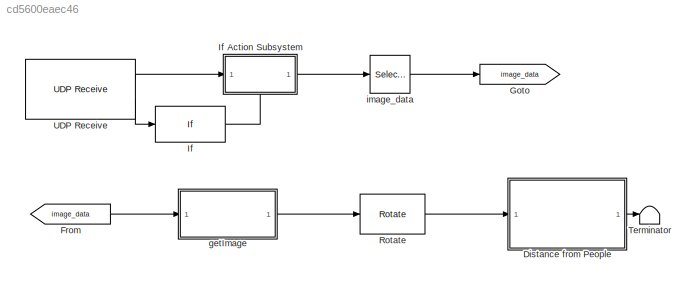
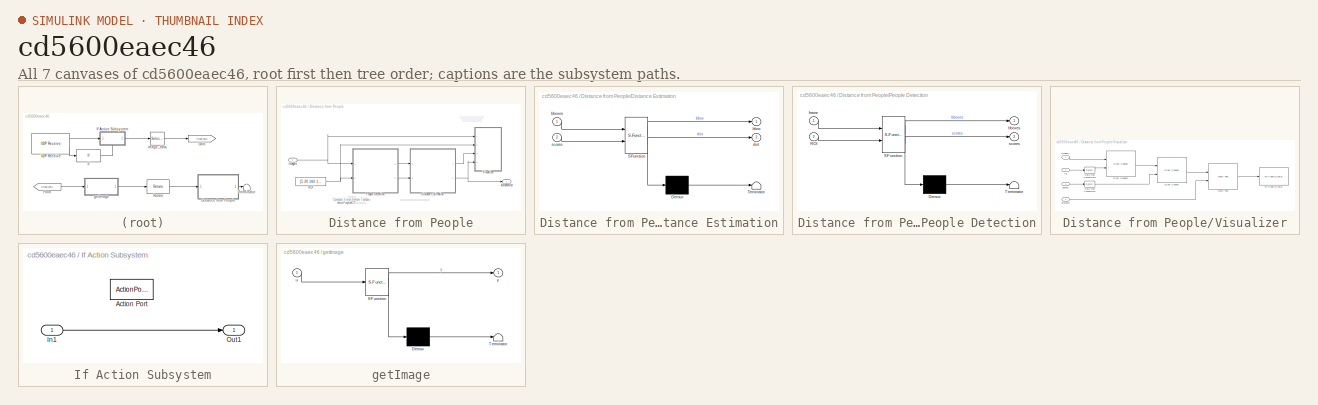
[diagram: thumbnail index - all 7 canvases of the model, root first then tree order]
MODEL slx_cd5600eaec46
KIND model
CONFIG AbsTol = auto
CONFIG FixedStep = 0.01
CONFIG InitFcn = data_len = 63504+16;
CONFIG MaxStep = auto
CONFIG MinStep = auto
CONFIG RelTol = 1e-3
CONFIG SampleTimeConstraint = Unconstrained
CONFIG Solver = FixedStepAuto
CONFIG SolverMode = Auto
CONFIG SolverName = FixedStepAuto
CONFIG StartTime = 0.0
CONFIG StopTime = inf
BLOCK [SubSystem] Distance from People
  Ports = [1, 1]
  RequestExecContextInheritance = off
  Variant = off
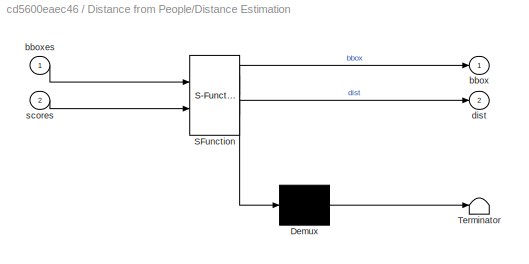
BLOCK [SubSystem] Distance from People/Distance Estimation
  ErrorFcn = Stateflow.Translate.translate
  PermitHierarchicalResolution = ExplicitOnly
  Ports = [2, 2]
  RequestExecContextInheritance = off
  SFBlockType = MATLAB Function
  TreatAsAtomicUnit = on
  Variant = off
BLOCK [Demux] Distance from People/Distance Estimation/ Demux 
  Outputs = 1
  Ports = [1, 1]
BLOCK [S-Function] Distance from People/Distance Estimation/ SFunction 
  EnableBusSupport = on
  FunctionName = sf_sfun
  PortCounts = [2 3]
  Ports = [2, 3]
  SFunctionDeploymentMode = off
  Tag = Stateflow S-Function detectPerson 5
BLOCK [Terminator] Distance from People/Distance Estimation/ Terminator 
BLOCK [Outport] Distance from People/Distance Estimation/bbox
  IconDisplay = Port number
BLOCK [Inport] Distance from People/Distance Estimation/bboxes
  IconDisplay = Port number
BLOCK [Outport] Distance from People/Distance Estimation/dist
  IconDisplay = Port number
  Port = 2
BLOCK [Inport] Distance from People/Distance Estimation/scores
  IconDisplay = Port number
  Port = 2
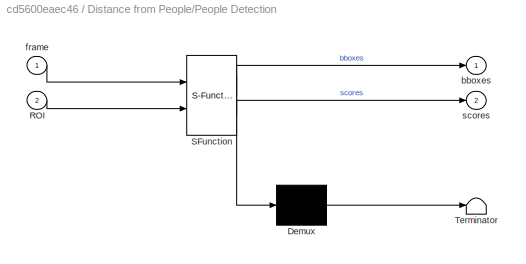
BLOCK [SubSystem] Distance from People/People Detection
  ErrorFcn = Stateflow.Translate.translate
  PermitHierarchicalResolution = ExplicitOnly
  Ports = [2, 2]
  RequestExecContextInheritance = off
  SFBlockType = MATLAB Function
  TreatAsAtomicUnit = on
  Variant = off
BLOCK [Demux] Distance from People/People Detection/ Demux 
  Outputs = 1
  Ports = [1, 1]
BLOCK [S-Function] Distance from People/People Detection/ SFunction 
  EnableBusSupport = on
  FunctionName = sf_sfun
  PortCounts = [2 3]
  Ports = [2, 3]
  SFunctionDeploymentMode = off
  Tag = Stateflow S-Function detectPerson 6
BLOCK [Terminator] Distance from People/People Detection/ Terminator 
BLOCK [Inport] Distance from People/People Detection/ROI
  IconDisplay = Port number
  Port = 2
BLOCK [Outport] Distance from People/People Detection/bboxes
  IconDisplay = Port number
BLOCK [Inport] Distance from People/People Detection/frame
  IconDisplay = Port number
BLOCK [Outport] Distance from People/People Detection/scores
  IconDisplay = Port number
  Port = 2
BLOCK [Constant] Distance from People/ROI
  Value = [5 20 160 100]
BLOCK [SubSystem] Distance from People/Visualizer
  Ports = [4]
  RequestExecContextInheritance = off
  Variant = off
BLOCK [DataTypeConversion] Distance from People/Visualizer/Data Type Conversion
  OutDataTypeStr = int32
  RndMeth = Floor
  SaturateOnIntegerOverflow = off
BLOCK [DataTypeConversion] Distance from People/Visualizer/Data Type Conversion1
  OutDataTypeStr = int32
  RndMeth = Floor
  SaturateOnIntegerOverflow = off
BLOCK [Reference] Distance from People/Visualizer/Draw Shapes  REF=visiontextngfix/Draw Shapes
  Ports = [2, 1]
  SourceBlock = visiontextngfix/Draw Shapes
  SourceType = Draw Shapes
BLOCK [Reference] Distance from People/Visualizer/Draw Shapes1  REF=visiontextngfix/Draw Shapes
  Ports = [2, 1]
  SourceBlock = visiontextngfix/Draw Shapes
  SourceType = Draw Shapes
BLOCK [Reference] Distance from People/Visualizer/Insert Text  REF=visiontextngfix/Insert Text
  Ports = [2, 1]
  SourceBlock = visiontextngfix/Insert Text
  SourceType = Insert Text
BLOCK [Reference] Distance from People/Visualizer/To Video Display  REF=visionsinks/To Video Display
  Ports = [1]
  SourceBlock = visionsinks/To Video Display
  SourceType = To Video Display
BLOCK [Inport] Distance from People/Visualizer/bboxes
  IconDisplay = Port number
  Port = 3
BLOCK [Inport] Distance from People/Visualizer/distance
  IconDisplay = Port number
  Port = 4
BLOCK [Inport] Distance from People/Visualizer/imageIn
  IconDisplay = Port number
BLOCK [Inport] Distance from People/Visualizer/roi
  IconDisplay = Port number
  Port = 2
BLOCK [Outport] Distance from People/distanceOut
  IconDisplay = Port number
BLOCK [Inport] Distance from People/imageIn
  IconDisplay = Port number
BLOCK [From] From
  GotoTag = image_data
BLOCK [Goto] Goto
  GotoTag = image_data
BLOCK [If] If
  Ports = [1, 1]
  ShowElse = off
BLOCK [SubSystem] If Action Subsystem
  Ports = [1, 1, 0, 0, 0, 0, 0, 1]
  RequestExecContextInheritance = off
  TreatAsAtomicUnit = on
  Variant = off
BLOCK [ActionPort] If Action Subsystem/Action Port
  ActionType = then
BLOCK [Inport] If Action Subsystem/In1
  IconDisplay = Port number
BLOCK [Outport] If Action Subsystem/Out1
  IconDisplay = Port number
BLOCK [Reference] Rotate  REF=visiongeotforms/Rotate
  Ports = [1, 1]
  SourceBlock = visiongeotforms/Rotate
  SourceType = Rotate
BLOCK [Terminator] Terminator
BLOCK [Reference] UDP Receive  REF=dspnetwork/UDP Receive
  Ports = [0, 2]
  SourceBlock = dspnetwork/UDP Receive
  SourceType = UDP Receive
BLOCK [SubSystem] getImage
  ErrorFcn = Stateflow.Translate.translate
  PermitHierarchicalResolution = ExplicitOnly
  Ports = [1, 1]
  RequestExecContextInheritance = off
  SFBlockType = MATLAB Function
  TreatAsAtomicUnit = on
  Variant = off
BLOCK [Demux] getImage/ Demux 
  Outputs = 1
  Ports = [1, 1]
BLOCK [S-Function] getImage/ SFunction 
  EnableBusSupport = on
  FunctionName = sf_sfun
  PortCounts = [1 2]
  Ports = [1, 2]
  SFunctionDeploymentMode = off
  Tag = Stateflow S-Function detectPerson 4
BLOCK [Terminator] getImage/ Terminator 
BLOCK [Inport] getImage/u
  IconDisplay = Port number
BLOCK [Outport] getImage/y
  IconDisplay = Port number
BLOCK [Selector] image_data
  IndexOptions = Index vector (dialog)
  Indices = 17:data_len
  InputPortWidth = data_len
  OutputSizes = 1
  Ports = [1, 1]
ANNOTATION Distance from People: 人物の足元の座標から距離を推定
ANNOTATION Distance from People: 人物を検出した枠の可視化 人物までの距離を表示
ANNOTATION Distance from People: 人物検出 Computer Vision System Toolboxの detectPeopleACF関数を使用
LINE Distance from People/Distance Estimation:1 -> Distance from People/Visualizer:3
NET Distance from People/Distance Estimation:2 -> Distance from People/Visualizer:4, Distance from People/distanceOut:1
LINE Distance from People/People Detection:1 -> Distance from People/Distance Estimation:1
LINE Distance from People/People Detection:2 -> Distance from People/Distance Estimation:2
NET Distance from People/ROI:1 -> Distance from People/People Detection:2, Distance from People/Visualizer:2
LINE Distance from People/Visualizer/Data Type Conversion1:1 -> Distance from People/Visualizer/Draw Shapes1:2
LINE Distance from People/Visualizer/Data Type Conversion:1 -> Distance from People/Visualizer/Draw Shapes:2
LINE Distance from People/Visualizer/Draw Shapes1:1 -> Distance from People/Visualizer/Draw Shapes:1
LINE Distance from People/Visualizer/Draw Shapes:1 -> Distance from People/Visualizer/Insert Text:1
LINE Distance from People/Visualizer/Insert Text:1 -> Distance from People/Visualizer/To Video Display:1
LINE Distance from People/Visualizer/bboxes:1 -> Distance from People/Visualizer/Data Type Conversion:1
LINE Distance from People/Visualizer/distance:1 -> Distance from People/Visualizer/Insert Text:2
LINE Distance from People/Visualizer/imageIn:1 -> Distance from People/Visualizer/Draw Shapes1:1
LINE Distance from People/Visualizer/roi:1 -> Distance from People/Visualizer/Data Type Conversion1:1
NET Distance from People/imageIn:1 -> Distance from People/People Detection:1, Distance from People/Visualizer:1
LINE Distance from People:1 -> Terminator:1
LINE From:1 -> getImage:1
LINE If Action Subsystem/In1:1 -> If Action Subsystem/Out1:1
LINE If Action Subsystem:1 -> image_data:1
LINE If:1 -> If Action Subsystem:ifaction
LINE Rotate:1 -> Distance from People:1
LINE UDP Receive:1 -> If Action Subsystem:1
LINE UDP Receive:2 -> If:1
LINE getImage:1 -> Rotate:1
LINE image_data:1 -> Goto:1
note: NET lines group one-source signal fan-out (src -> all destinations, sorted); 1:1 wires keep LINE
CHART getImage states=1 transitions=1
  STATE_LABEL 'eML_blk_kernel()'
  STATE_LABEL 'SCRIPT:\nfunction y = fcn(u)\n%#codegen\nw = 168;\nh = 126;\n\ny = uint8(zeros(w, h, 3));\n\ntemp = reshape(u, 3, length(u)/3);\n\ny(:, :, 1) = reshape(temp(1, :), w, h);\ny(:, :, 2) = reshape(temp(2, :), w, h);\ny(:, :, 3) = reshape(temp(3, :), w, h);\n\n% [EOF]'
CHART Distance from People/Distance Estimation states=1 transitions=1
  STATE_LABEL 'eML_blk_kernel()'
  STATE_LABEL 'SCRIPT:\nfunction [bbox,dist] = estimateDistance(bboxes,scores)\nif isempty(bboxes)\n    dist = 0;\n    bbox = [0 0 0 0];\nelse\n    [~,indMax] = max(scores); % 一番、人物らしい枠を抽出\n    bbox = bboxes(indMax,1:4); % バウンディングボックスを抽出\n    height = bbox(1, 4); % 高さを取得\n    dist = 100/height; % 人の高さが一定として距離を計算\nend\n'
CHART Distance from People/People Detection states=1 transitions=1
  STATE_LABEL 'eML_blk_kernel()'
  STATE_LABEL "SCRIPT:\nfunction [bboxes, scores] = detectPeople(frame,ROI)\n%#codegen\ncoder.extrinsic('detectPeopleACF');\nbboxes = zeros(100,4); %#ok<*PREALL>\nscores = zeros(100,1);\n\n% Computer Vision System Toolboxの人物検出の関数を使用\n[bboxes,scores] = detectPeopleACF(frame, ROI, ...\n            'Model','caltech',...\n            'WindowStride', 2,...\n            'NumScaleLevels', 4, ...\n            'SelectStrongest', fal...<+20ch>"
